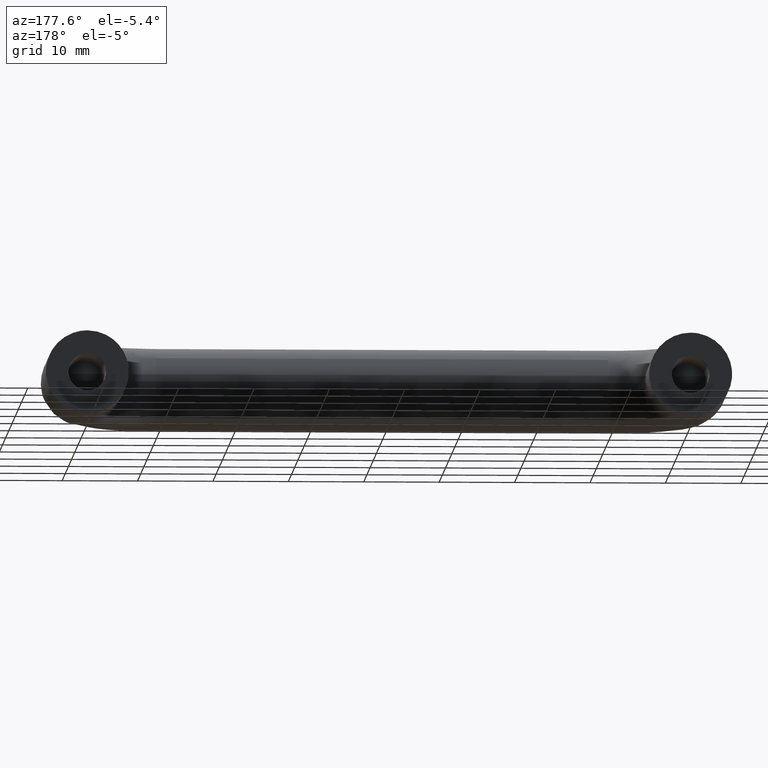
[diagram: clean part render]
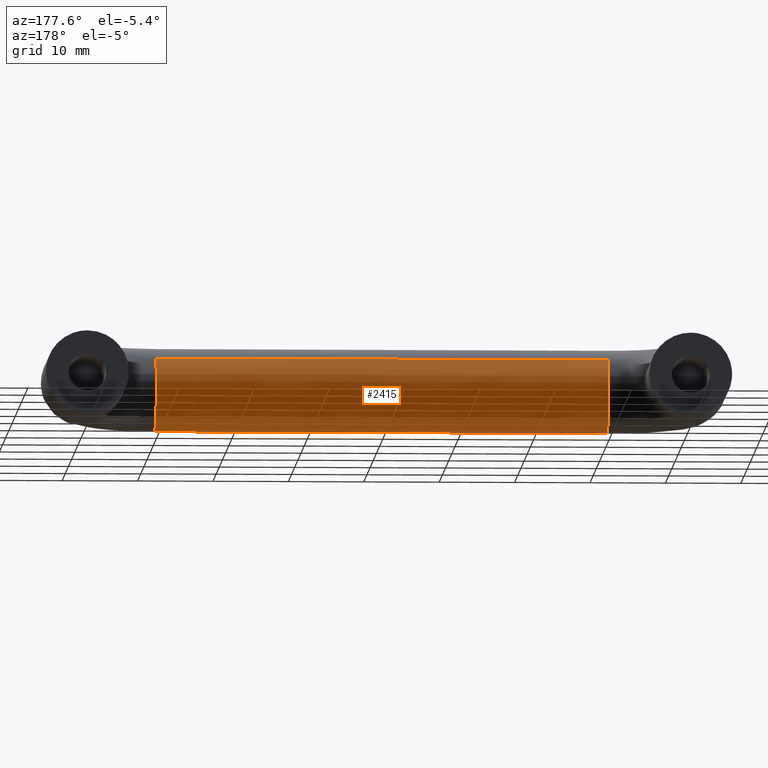
[diagram: same view with one face highlighted and labeled with its STEP entity id]
A machine part, auxiliary view. The second image highlights one B-rep face of the part: STEP entity #2415.
In plain terms, the highlighted face is a freeform B-spline surface patch.
Its self-contained STEP definition (entity closure, byte-faithful):
#2256=CARTESIAN_POINT('',(8.499990087456915,-29.605575385723483,4.155084709163902));
#2257=CARTESIAN_POINT('',(8.499990087456915,-29.650968093335546,4.113894306806338));
#2258=CARTESIAN_POINT('',(8.499990087456915,-29.812548999246189,3.967272021468385));
#2259=CARTESIAN_POINT('',(8.499990087456915,-29.922877470319200,3.855000953649177));
#2260=CARTESIAN_POINT('',(8.499990087456915,-33.777878423968382,-0.067876516698822));
#2261=CARTESIAN_POINT('',(8.499990087456915,-29.855000953620380,-3.922877470347999));
#2262=CARTESIAN_POINT('',(8.499990087456915,-25.932123483272385,-7.777878423997177));
#2263=CARTESIAN_POINT('',(8.499990087456915,-22.077122529623200,-3.855000953649177));
#2264=CARTESIAN_POINT('',(8.499990087456915,-18.222121575974022,0.067876516698822));
#2265=CARTESIAN_POINT('',(8.499990087456913,-22.186975524598964,3.964127640665984));
#2266=CARTESIAN_POINT('',(8.499990087456913,-22.228581543226138,4.005013761300054));
#2267=CARTESIAN_POINT('',(71.537500248509986,-29.605575385723483,4.155084709163902));
#2268=CARTESIAN_POINT('',(71.537500248509971,-29.650968093335546,4.113894306806338));
#2269=CARTESIAN_POINT('',(71.537500248509957,-29.812548999246189,3.967272021468385));
#2270=CARTESIAN_POINT('',(71.537500248509957,-29.922877470319200,3.855000953649177));
#2271=CARTESIAN_POINT('',(71.537500248509957,-33.777878423968382,-0.067876516698822));
#2272=CARTESIAN_POINT('',(71.537500248509957,-29.855000953620380,-3.922877470347999));
#2273=CARTESIAN_POINT('',(71.537500248509957,-25.932123483272385,-7.777878423997177));
#2274=CARTESIAN_POINT('',(71.537500248509957,-22.077122529623200,-3.855000953649177));
#2275=CARTESIAN_POINT('',(71.537500248509957,-18.222121575974022,0.067876516698822));
#2276=CARTESIAN_POINT('',(71.537500248509957,-22.186975524598964,3.964127640665984));
#2277=CARTESIAN_POINT('',(71.537500248509929,-22.228581543226138,4.005013761300054));
#2285=(BOUNDED_SURFACE()B_SPLINE_SURFACE(2,1,((#2256,#2267),(#2257,#2268),(#2258,#2269),(#2259,#2270),(#2260,#2271),(#2261,#2272),(#2262,#2273),(#2263,#2274),(#2264,#2275),(#2265,#2276),(#2266,#2277)),.UNSPECIFIED.,.F.,.F.,.U.)B_SPLINE_SURFACE_WITH_KNOTS((3,1,2,2,2,1,3),(2,2),(0.0,0.138632380056446,0.503140314944770,9.615838687152863,18.728537059360960,27.841235431569039,27.979749037560971),(0.0,63.037510161053071),.UNSPECIFIED.)GEOMETRIC_REPRESENTATION_ITEM()RATIONAL_B_SPLINE_SURFACE(((0.969307104036259,0.969307104036259),(0.973406452415693,0.973406452415693),(0.988284271247462,0.988284271247462),(1.0,1.0),(0.707106781186548,0.707106781186548),(1.0,1.0),(0.707106781186548,0.707106781186548),(1.0,1.0),(0.707106781186548,0.707106781186548),(1.004451995912886,1.004451995912886),(1.008903991825772,1.008903991825772)))REPRESENTATION_ITEM('')SURFACE());
#2286=CARTESIAN_POINT('',(70.000000000080860,-31.498263041026028,-0.138215525071287));
#2287=VERTEX_POINT('',#2286);
#2288=CARTESIAN_POINT('',(70.0,-29.695980075800492,4.073049383333469));
#2289=VERTEX_POINT('',#2288);
#2290=CARTESIAN_POINT('',(70.000000000080860,-31.498263041026036,-0.138215525071287));
#2291=CARTESIAN_POINT('',(70.0,-31.499999999971251,-0.069118676811581));
#2292=CARTESIAN_POINT('',(70.0,-31.499999999971251,0.0));
#2293=CARTESIAN_POINT('',(69.999999999999986,-31.499999999971248,2.436039598125889));
#2294=CARTESIAN_POINT('',(70.0,-29.695980075800481,4.073049383333469));
#2302=(BOUNDED_CURVE()B_SPLINE_CURVE(2,(#2290,#2291,#2292,#2293,#2294),.UNSPECIFIED.,.F.,.U.)B_SPLINE_CURVE_WITH_KNOTS((3,2,3),(0.245579891761347,0.250000000000000,0.382319047793504),.UNSPECIFIED.)CURVE()GEOMETRIC_REPRESENTATION_ITEM()RATIONAL_B_SPLINE_CURVE((0.989826157662452,0.994821521081908,1.0,0.844978592725718,0.854055465436572))REPRESENTATION_ITEM(''));
#2303=EDGE_CURVE('',#2287,#2289,#2302,.T.);
#2304=ORIENTED_EDGE('',*,*,#2303,.T.);
#2305=CARTESIAN_POINT('',(9.999991609832343,-29.682214072074430,4.058033287754828));
#2306=VERTEX_POINT('',#2305);
#2307=CARTESIAN_POINT('',(9.999991609832343,-29.682214072074430,4.058033287754828));
#2308=CARTESIAN_POINT('',(70.0,-29.695980075800492,4.073049383333469));
#2309=QUASI_UNIFORM_CURVE('',1,(#2307,#2308),.UNSPECIFIED.,.F.,.U.);
#2310=EDGE_CURVE('',#2306,#2289,#2309,.T.);
#2311=ORIENTED_EDGE('',*,*,#2310,.F.);
#2312=CARTESIAN_POINT('',(10.0,-25.999999999971202,-5.500000000000000));
#2313=VERTEX_POINT('',#2312);
#2314=CARTESIAN_POINT('',(10.0,-25.999999999971202,-5.500000000000000));
#2315=CARTESIAN_POINT('',(10.000000000000002,-31.502657209227138,-5.497101489368516));
#2316=CARTESIAN_POINT('',(9.999995164621417,-31.475001471608451,0.010203063851553));
#2317=CARTESIAN_POINT('',(9.999993046015813,-31.462884198940699,2.423210876401377));
#2318=CARTESIAN_POINT('',(9.999991609832343,-29.682214072074427,4.058033287754828));
#2326=(BOUNDED_CURVE()B_SPLINE_CURVE(2,(#2314,#2315,#2316,#2317,#2318),.UNSPECIFIED.,.F.,.U.)B_SPLINE_CURVE_WITH_KNOTS((3,2,3),(0.0,0.250000000000000,0.381113054492791),.UNSPECIFIED.)CURVE()GEOMETRIC_REPRESENTATION_ITEM()RATIONAL_B_SPLINE_CURVE((1.0,0.707106781186548,1.0,0.846391501764571,0.853903638726723))REPRESENTATION_ITEM(''));
#2327=EDGE_CURVE('',#2313,#2306,#2326,.T.);
#2328=ORIENTED_EDGE('',*,*,#2327,.F.);
#2329=CARTESIAN_POINT('',(9.999992949288926,-20.513388833954501,-0.383533457551528));
#2330=VERTEX_POINT('',#2329);
#2331=CARTESIAN_POINT('',(9.999992949288926,-20.513388833954501,-0.383533457551528));
#2332=CARTESIAN_POINT('',(9.999996474644464,-20.871047877784083,-5.500000000000384));
#2333=CARTESIAN_POINT('',(10.0,-25.999999999971202,-5.500000000000000));
#2341=(BOUNDED_CURVE()B_SPLINE_CURVE(2,(#2331,#2332,#2333),.UNSPECIFIED.,.F.,.U.)B_SPLINE_CURVE_WITH_KNOTS((3,3),(0.762166331453804,1.0),.UNSPECIFIED.)CURVE()GEOMETRIC_REPRESENTATION_ITEM()RATIONAL_B_SPLINE_CURVE((0.972879838338914,0.721360525109172,1.0))REPRESENTATION_ITEM(''));
#2342=EDGE_CURVE('',#2330,#2313,#2341,.T.);
#2343=ORIENTED_EDGE('',*,*,#2342,.F.);
#2344=CARTESIAN_POINT('',(9.999991549384397,-22.144999046298249,3.922877470324082));
#2345=VERTEX_POINT('',#2344);
#2346=CARTESIAN_POINT('',(9.999991549384395,-22.144999046298249,3.922877470324082));
#2347=CARTESIAN_POINT('',(9.999992304018475,-20.499999999962998,2.306341409632871));
#2348=CARTESIAN_POINT('',(9.999992859831211,-20.499999999960639,-1.102049E-012));
#2349=CARTESIAN_POINT('',(9.999992906102019,-20.499999999960451,-0.192000425305512));
#2350=CARTESIAN_POINT('',(9.999992949288926,-20.513388833954501,-0.383533457551528));
#2358=(BOUNDED_CURVE()B_SPLINE_CURVE(2,(#2346,#2347,#2348,#2349,#2350),.UNSPECIFIED.,.F.,.U.)B_SPLINE_CURVE_WITH_KNOTS((3,2,3),(0.623683242410545,0.750000000000000,0.762166331453804),.UNSPECIFIED.)CURVE()GEOMETRIC_REPRESENTATION_ITEM()RATIONAL_B_SPLINE_CURVE((0.853569641251461,0.852010713118184,1.0,0.985746256077376,0.972879838338914))REPRESENTATION_ITEM(''));
#2359=EDGE_CURVE('',#2345,#2330,#2358,.T.);
#2360=ORIENTED_EDGE('',*,*,#2359,.F.);
#2361=CARTESIAN_POINT('',(70.0,-22.144999046176800,3.922877470205262));
#2362=VERTEX_POINT('',#2361);
#2363=CARTESIAN_POINT('',(9.999991549384397,-22.144999046298249,3.922877470324082));
#2364=CARTESIAN_POINT('',(70.0,-22.144999046176800,3.922877470205262));
#2365=QUASI_UNIFORM_CURVE('',1,(#2363,#2364),.UNSPECIFIED.,.F.,.U.);
#2366=EDGE_CURVE('',#2345,#2362,#2365,.T.);
#2367=ORIENTED_EDGE('',*,*,#2366,.T.);
#2368=CARTESIAN_POINT('',(70.000000000679393,-25.861784474253859,-5.498263041038566));
#2369=VERTEX_POINT('',#2368);
#2370=CARTESIAN_POINT('',(70.0,-22.144999046176789,3.922877470205263));
#2371=CARTESIAN_POINT('',(69.999999999999986,-20.499999999971248,2.306341409431673));
#2372=CARTESIAN_POINT('',(70.0,-20.499999999971251,0.0));
#2373=CARTESIAN_POINT('',(70.0,-20.499999999971244,-5.363478317473301));
#2374=CARTESIAN_POINT('',(70.000000000679393,-25.861784474253859,-5.498263041038567));
#2382=(BOUNDED_CURVE()B_SPLINE_CURVE(2,(#2370,#2371,#2372,#2373,#2374),.UNSPECIFIED.,.F.,.U.)B_SPLINE_CURVE_WITH_KNOTS((3,2,3),(0.623683242420083,0.750000000000000,0.995579891720226),.UNSPECIFIED.)CURVE()GEOMETRIC_REPRESENTATION_ITEM()RATIONAL_B_SPLINE_CURVE((0.853569641251226,0.852010713129358,1.0,0.712285260152816,0.989826157569507))REPRESENTATION_ITEM(''));
#2383=EDGE_CURVE('',#2362,#2369,#2382,.T.);
#2384=ORIENTED_EDGE('',*,*,#2383,.T.);
#2385=CARTESIAN_POINT('',(70.0,-25.999999999971251,-5.500000000000000));
#2386=VERTEX_POINT('',#2385);
#2387=CARTESIAN_POINT('',(70.000000000679393,-25.861784474253863,-5.498263041038566));
#2388=CARTESIAN_POINT('',(69.999999999999986,-25.930881322513290,-5.500000000000000));
#2389=CARTESIAN_POINT('',(70.0,-25.999999999971251,-5.500000000000000));
#2397=(BOUNDED_CURVE()B_SPLINE_CURVE(2,(#2387,#2388,#2389),.UNSPECIFIED.,.F.,.U.)B_SPLINE_CURVE_WITH_KNOTS((3,3),(0.995579891720225,1.0),.UNSPECIFIED.)CURVE()GEOMETRIC_REPRESENTATION_ITEM()RATIONAL_B_SPLINE_CURVE((0.989826157569505,0.994821521033731,1.0))REPRESENTATION_ITEM(''));
#2398=EDGE_CURVE('',#2369,#2386,#2397,.T.);
#2399=ORIENTED_EDGE('',*,*,#2398,.T.);
#2400=CARTESIAN_POINT('',(70.0,-25.999999999971251,-5.500000000000000));
#2401=CARTESIAN_POINT('',(70.000000000000014,-31.363478318705393,-5.500000000000000));
#2402=CARTESIAN_POINT('',(70.000000000080860,-31.498263041026028,-0.138215525071287));
#2410=(BOUNDED_CURVE()B_SPLINE_CURVE(2,(#2400,#2401,#2402),.UNSPECIFIED.,.F.,.U.)B_SPLINE_CURVE_WITH_KNOTS((3,3),(0.0,0.245579891761347),.UNSPECIFIED.)CURVE()GEOMETRIC_REPRESENTATION_ITEM()RATIONAL_B_SPLINE_CURVE((1.0,0.712285260104640,0.989826157662452))REPRESENTATION_ITEM(''));
#2411=EDGE_CURVE('',#2386,#2287,#2410,.T.);
#2412=ORIENTED_EDGE('',*,*,#2411,.T.);
#2413=EDGE_LOOP('',(#2304,#2311,#2328,#2343,#2360,#2367,#2384,#2399,#2412));
#2414=FACE_OUTER_BOUND('',#2413,.T.);
#2415=ADVANCED_FACE('',(#2414),#2285,.T.);